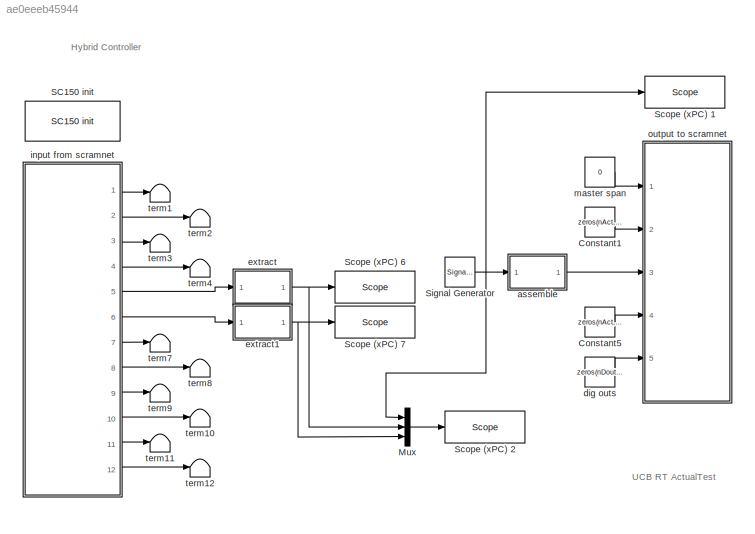
MODEL slx_ae0eeeb45944
KIND model
CONFIG AbsTol = auto
CONFIG FixedStep = controlPeriod
CONFIG MaxStep = auto
CONFIG MinStep = auto
CONFIG PreLoadFcn = initializeSimulation\ninitializeSCRAMNet
CONFIG RelTol = 1e-3
CONFIG SampleTimeConstraint = Unconstrained
CONFIG Solver = FixedStepDiscrete
CONFIG SolverMode = Auto
CONFIG SolverName = FixedStepDiscrete
CONFIG StartTime = 0.0
CONFIG StopTime = inf
BLOCK [Constant] Constant1
  Value = zeros(nAct,1)
BLOCK [Constant] Constant5
  Value = zeros(nAct,1)
BLOCK [Mux] Mux
  DisplayOption = bar
  Inputs = 3
  Ports = [3, 1]
BLOCK [Reference] SC150 init  REF=xpcsystranlib/Shared
Memory/SC150 init 
  Ports = []
  SourceBlock = xpcsystranlib/Shared\nMemory/SC150 init
  SourceType = SC150 Init
BLOCK [Reference] Scope (xPC) 1  REF=slrtlib/Displays and
Logging/Scope 
  Ports = [1]
  SourceBlock = slrtlib/Displays and\nLogging/Scope
  SourceType = xpcscopeblock
BLOCK [Reference] Scope (xPC) 2  REF=slrtlib/Displays and
Logging/Scope 
  Ports = [1]
  SourceBlock = slrtlib/Displays and\nLogging/Scope
  SourceType = xpcscopeblock
BLOCK [Reference] Scope (xPC) 6  REF=slrtlib/Displays and
Logging/Scope 
  Ports = [1]
  SourceBlock = slrtlib/Displays and\nLogging/Scope
  SourceType = xpcscopeblock
BLOCK [Reference] Scope (xPC) 7  REF=slrtlib/Displays and
Logging/Scope 
  Ports = [1]
  SourceBlock = slrtlib/Displays and\nLogging/Scope
  SourceType = xpcscopeblock
BLOCK [SignalGenerator] Signal Generator
  Amplitude = 2
  Ports = [0, 1]
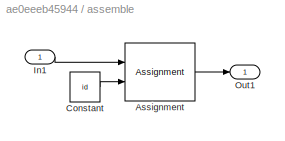
BLOCK [SubSystem] assemble
  Ports = [1, 1]
  RequestExecContextInheritance = off
  Variant = off
BLOCK [Assignment] assemble/Assignment
  IndexOptions = Index vector (port)
  Indices = 1
  OutputInitialize = Specify size for each dimension in table
  OutputSizes = size
  Ports = [2, 1]
BLOCK [Constant] assemble/Constant
  Value = id
BLOCK [Inport] assemble/In1
  IconDisplay = Port number
BLOCK [Outport] assemble/Out1
  IconDisplay = Port number
BLOCK [Constant] dig outs
  OutDataTypeStr = uint32
  Value = zeros(nDout, 1)
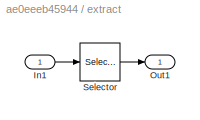
BLOCK [SubSystem] extract
  Ports = [1, 1]
  RequestExecContextInheritance = off
  Variant = off
BLOCK [Inport] extract/In1
  IconDisplay = Port number
BLOCK [Outport] extract/Out1
  IconDisplay = Port number
BLOCK [Selector] extract/Selector
  IndexOptions = Index vector (dialog)
  Indices = id
  InputPortWidth = size
  OutputSizes = 1
  Ports = [1, 1]
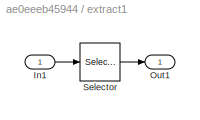
BLOCK [SubSystem] extract1
  Ports = [1, 1]
  RequestExecContextInheritance = off
  Variant = off
BLOCK [Inport] extract1/In1
  IconDisplay = Port number
BLOCK [Outport] extract1/Out1
  IconDisplay = Port number
BLOCK [Selector] extract1/Selector
  IndexOptions = Index vector (dialog)
  Indices = id
  InputPortWidth = size
  OutputSizes = 1
  Ports = [1, 1]
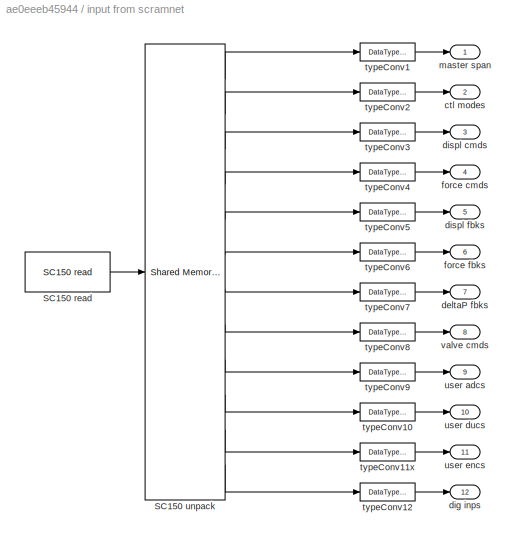
BLOCK [SubSystem] input from scramnet
  Ports = [0, 12]
  RequestExecContextInheritance = off
  Variant = off
BLOCK [Reference] input from scramnet/SC150 read  REF=xpcsystranlib/Shared
Memory/SC150 read 
  Ports = [0, 1]
  SourceBlock = xpcsystranlib/Shared\nMemory/SC150 read
  SourceType = SC150 Read
BLOCK [Reference] input from scramnet/SC150 unpack  REF=slrtlib/Shared
Memory/Shared Memory Unpack 
  Ports = [1, 12]
  SourceBlock = slrtlib/Shared\nMemory/Shared Memory Unpack
  SourceType = Shared Memory Partition Unpacking
BLOCK [Outport] input from scramnet/ctl modes
  IconDisplay = Port number
  Port = 2
BLOCK [Outport] input from scramnet/deltaP fbks
  IconDisplay = Port number
  Port = 7
BLOCK [Outport] input from scramnet/dig inps
  IconDisplay = Port number
  Port = 12
BLOCK [Outport] input from scramnet/displ cmds
  IconDisplay = Port number
  Port = 3
BLOCK [Outport] input from scramnet/displ fbks
  IconDisplay = Port number
  Port = 5
BLOCK [Outport] input from scramnet/force cmds
  IconDisplay = Port number
  Port = 4
BLOCK [Outport] input from scramnet/force fbks
  IconDisplay = Port number
  Port = 6
BLOCK [Outport] input from scramnet/master span
  IconDisplay = Port number
BLOCK [DataTypeConversion] input from scramnet/typeConv1
  OutDataTypeStr = double
BLOCK [DataTypeConversion] input from scramnet/typeConv10
  OutDataTypeStr = double
BLOCK [DataTypeConversion] input from scramnet/typeConv11x
  OutDataTypeStr = double
BLOCK [DataTypeConversion] input from scramnet/typeConv12
  OutDataTypeStr = uint32
BLOCK [DataTypeConversion] input from scramnet/typeConv2
  OutDataTypeStr = uint32
BLOCK [DataTypeConversion] input from scramnet/typeConv3
  OutDataTypeStr = double
BLOCK [DataTypeConversion] input from scramnet/typeConv4
  OutDataTypeStr = double
BLOCK [DataTypeConversion] input from scramnet/typeConv5
  OutDataTypeStr = double
BLOCK [DataTypeConversion] input from scramnet/typeConv6
  OutDataTypeStr = double
BLOCK [DataTypeConversion] input from scramnet/typeConv7
  OutDataTypeStr = double
BLOCK [DataTypeConversion] input from scramnet/typeConv8
  OutDataTypeStr = double
BLOCK [DataTypeConversion] input from scramnet/typeConv9
  OutDataTypeStr = double
BLOCK [Outport] input from scramnet/user adcs
  IconDisplay = Port number
  Port = 9
BLOCK [Outport] input from scramnet/user ducs
  IconDisplay = Port number
  Port = 10
BLOCK [Outport] input from scramnet/user encs
  IconDisplay = Port number
  Port = 11
BLOCK [Outport] input from scramnet/valve cmds
  IconDisplay = Port number
  Port = 8
BLOCK [Constant] master span
  Value = 0
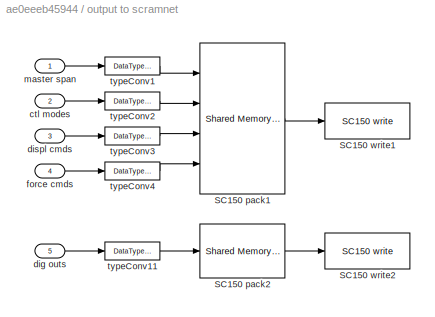
BLOCK [SubSystem] output to scramnet
  Ports = [5]
  RequestExecContextInheritance = off
  Variant = off
BLOCK [Reference] output to scramnet/SC150 pack1  REF=slrtlib/Shared
Memory/Shared Memory Pack 
  Ports = [4, 1]
  SourceBlock = slrtlib/Shared\nMemory/Shared Memory Pack
  SourceType = Shared-memory Pack
BLOCK [Reference] output to scramnet/SC150 pack2  REF=slrtlib/Shared
Memory/Shared Memory Pack 
  Ports = [1, 1]
  SourceBlock = slrtlib/Shared\nMemory/Shared Memory Pack
  SourceType = Shared-memory Pack
BLOCK [Reference] output to scramnet/SC150 write1  REF=xpcsystranlib/Shared
Memory/SC150 write 
  Ports = [1]
  SourceBlock = xpcsystranlib/Shared\nMemory/SC150 write
  SourceType = SC150 Write
BLOCK [Reference] output to scramnet/SC150 write2  REF=xpcsystranlib/Shared
Memory/SC150 write 
  Ports = [1]
  SourceBlock = xpcsystranlib/Shared\nMemory/SC150 write
  SourceType = SC150 Write
BLOCK [Inport] output to scramnet/ctl modes
  IconDisplay = Port number
  Port = 2
BLOCK [Inport] output to scramnet/dig outs
  IconDisplay = Port number
  Port = 5
BLOCK [Inport] output to scramnet/displ cmds
  IconDisplay = Port number
  Port = 3
BLOCK [Inport] output to scramnet/force cmds
  IconDisplay = Port number
  Port = 4
BLOCK [Inport] output to scramnet/master span
  IconDisplay = Port number
BLOCK [DataTypeConversion] output to scramnet/typeConv1
  OutDataTypeStr = single
BLOCK [DataTypeConversion] output to scramnet/typeConv11
  OutDataTypeStr = uint32
BLOCK [DataTypeConversion] output to scramnet/typeConv2
  OutDataTypeStr = uint32
BLOCK [DataTypeConversion] output to scramnet/typeConv3
  OutDataTypeStr = single
BLOCK [DataTypeConversion] output to scramnet/typeConv4
  OutDataTypeStr = single
BLOCK [Terminator] term1
BLOCK [Terminator] term10
BLOCK [Terminator] term11
BLOCK [Terminator] term12
BLOCK [Terminator] term2
BLOCK [Terminator] term3
BLOCK [Terminator] term4
BLOCK [Terminator] term7
BLOCK [Terminator] term8
BLOCK [Terminator] term9
ANNOTATION (root): Hybrid Controller
ANNOTATION (root): UCB RT ActualTest
LINE Constant1:1 -> output to scramnet:2
LINE Constant5:1 -> output to scramnet:4
LINE Mux:1 -> Scope (xPC) 2:1
NET Signal Generator:1 -> Mux:1, Scope (xPC) 1:1, assemble:1
LINE assemble/Assignment:1 -> assemble/Out1:1
LINE assemble/Constant:1 -> assemble/Assignment:2
LINE assemble/In1:1 -> assemble/Assignment:1
LINE assemble:1 -> output to scramnet:3
LINE dig outs:1 -> output to scramnet:5
LINE extract/In1:1 -> extract/Selector:1
LINE extract/Selector:1 -> extract/Out1:1
LINE extract1/In1:1 -> extract1/Selector:1
LINE extract1/Selector:1 -> extract1/Out1:1
NET extract1:1 -> Mux:3, Scope (xPC) 7:1
NET extract:1 -> Mux:2, Scope (xPC) 6:1
LINE input from scramnet/SC150 read:1 -> input from scramnet/SC150 unpack:1
LINE input from scramnet/SC150 unpack:1 -> input from scramnet/typeConv1:1
LINE input from scramnet/SC150 unpack:10 -> input from scramnet/typeConv10:1
LINE input from scramnet/SC150 unpack:11 -> input from scramnet/typeConv11x:1
LINE input from scramnet/SC150 unpack:12 -> input from scramnet/typeConv12:1
LINE input from scramnet/SC150 unpack:2 -> input from scramnet/typeConv2:1
LINE input from scramnet/SC150 unpack:3 -> input from scramnet/typeConv3:1
LINE input from scramnet/SC150 unpack:4 -> input from scramnet/typeConv4:1
LINE input from scramnet/SC150 unpack:5 -> input from scramnet/typeConv5:1
LINE input from scramnet/SC150 unpack:6 -> input from scramnet/typeConv6:1
LINE input from scramnet/SC150 unpack:7 -> input from scramnet/typeConv7:1
LINE input from scramnet/SC150 unpack:8 -> input from scramnet/typeConv8:1
LINE input from scramnet/SC150 unpack:9 -> input from scramnet/typeConv9:1
LINE input from scramnet/typeConv10:1 -> input from scramnet/user ducs:1
LINE input from scramnet/typeConv11x:1 -> input from scramnet/user encs:1
LINE input from scramnet/typeConv12:1 -> input from scramnet/dig inps:1
LINE input from scramnet/typeConv1:1 -> input from scramnet/master span:1
LINE input from scramnet/typeConv2:1 -> input from scramnet/ctl modes:1
LINE input from scramnet/typeConv3:1 -> input from scramnet/displ cmds:1
LINE input from scramnet/typeConv4:1 -> input from scramnet/force cmds:1
LINE input from scramnet/typeConv5:1 -> input from scramnet/displ fbks:1
LINE input from scramnet/typeConv6:1 -> input from scramnet/force fbks:1
LINE input from scramnet/typeConv7:1 -> input from scramnet/deltaP fbks:1
LINE input from scramnet/typeConv8:1 -> input from scramnet/valve cmds:1
LINE input from scramnet/typeConv9:1 -> input from scramnet/user adcs:1
LINE input from scramnet:1 -> term1:1
LINE input from scramnet:10 -> term10:1
LINE input from scramnet:11 -> term11:1
LINE input from scramnet:12 -> term12:1
LINE input from scramnet:2 -> term2:1
LINE input from scramnet:3 -> term3:1
LINE input from scramnet:4 -> term4:1
LINE input from scramnet:5 -> extract:1
LINE input from scramnet:6 -> extract1:1
LINE input from scramnet:7 -> term7:1
LINE input from scramnet:8 -> term8:1
LINE input from scramnet:9 -> term9:1
LINE master span:1 -> output to scramnet:1
LINE output to scramnet/SC150 pack1:1 -> output to scramnet/SC150 write1:1
LINE output to scramnet/SC150 pack2:1 -> output to scramnet/SC150 write2:1
LINE output to scramnet/ctl modes:1 -> output to scramnet/typeConv2:1
LINE output to scramnet/dig outs:1 -> output to scramnet/typeConv11:1
LINE output to scramnet/displ cmds:1 -> output to scramnet/typeConv3:1
LINE output to scramnet/force cmds:1 -> output to scramnet/typeConv4:1
LINE output to scramnet/master span:1 -> output to scramnet/typeConv1:1
LINE output to scramnet/typeConv11:1 -> output to scramnet/SC150 pack2:1
LINE output to scramnet/typeConv1:1 -> output to scramnet/SC150 pack1:1
LINE output to scramnet/typeConv2:1 -> output to scramnet/SC150 pack1:2
LINE output to scramnet/typeConv3:1 -> output to scramnet/SC150 pack1:3
LINE output to scramnet/typeConv4:1 -> output to scramnet/SC150 pack1:4
note: NET lines group one-source signal fan-out (src -> all destinations, sorted); 1:1 wires keep LINE
